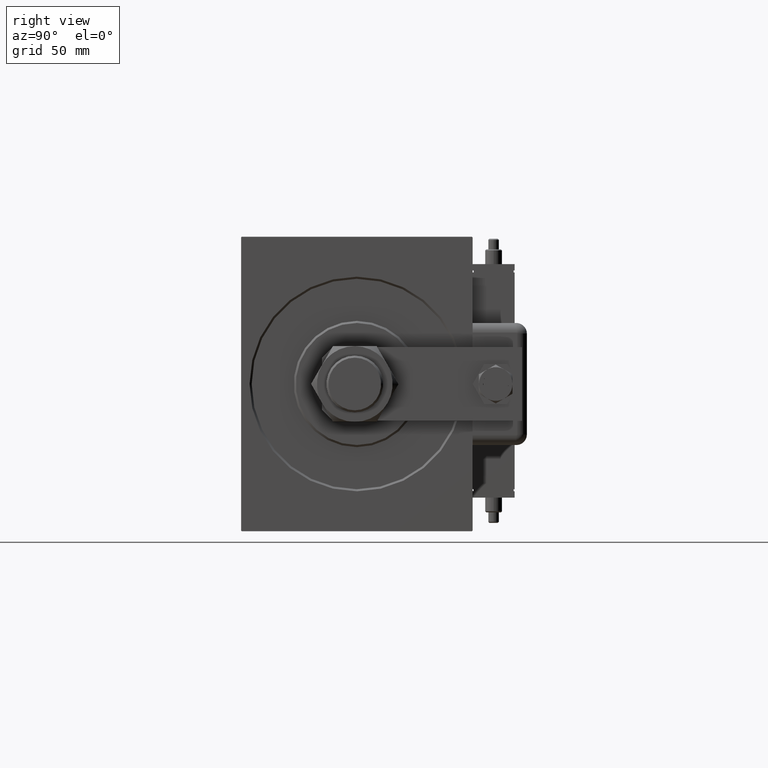
[diagram: clean part render]
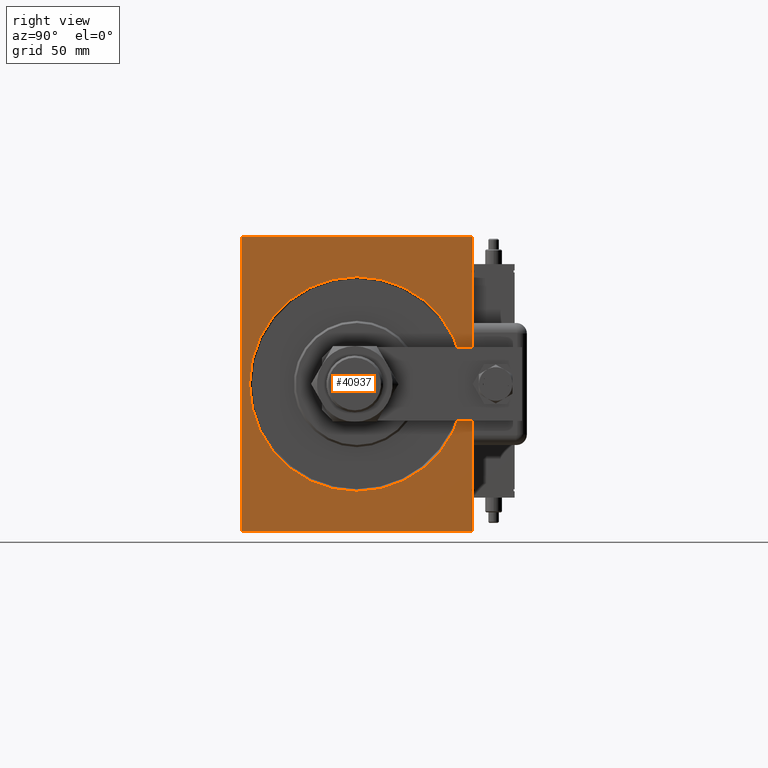
[diagram: same view with one face highlighted and labeled with its STEP entity id]
A machine part, right view. The second image highlights one B-rep face of the part: STEP entity #40937.
In plain terms, the highlighted planar face has unit normal (-1, 0, 0).
Its self-contained STEP definition (entity closure, byte-faithful):
#148 = AXIS2_PLACEMENT_3D ( 'NONE', #32329, #32010, #8448 ) ;
#207 = VERTEX_POINT ( 'NONE', #55438 ) ;
#441 = CARTESIAN_POINT ( 'NONE',  ( 0.000000000000000000, 0.000000000000000000, 50.99999999999993605 ) ) ;
#1582 = VERTEX_POINT ( 'NONE', #46875 ) ;
#1964 = CARTESIAN_POINT ( 'NONE',  ( 0.000000000000000000, 54.99999999999999289, 70.00000000000000000 ) ) ;
#2148 = EDGE_CURVE ( 'NONE', #32895, #46059, #28184, .T. ) ;
#2700 = CARTESIAN_POINT ( 'NONE',  ( 0.000000000000000000, -54.99999999999999289, 69.70000000000000284 ) ) ;
#3105 = AXIS2_PLACEMENT_3D ( 'NONE', #38208, #14310, #33486 ) ;
#4983 = DIRECTION ( 'NONE',  ( 0.000000000000000000, -1.982541115402065110E-16, 1.000000000000000000 ) ) ;
#5762 = VECTOR ( 'NONE', #59098, 1000.000000000000114 ) ;
#7254 = EDGE_CURVE ( 'NONE', #40719, #207, #24444, .T. ) ;
#7921 = ORIENTED_EDGE ( 'NONE', *, *, #61607, .T. ) ;
#8325 = VECTOR ( 'NONE', #4983, 1000.000000000000000 ) ;
#8448 = DIRECTION ( 'NONE',  ( 0.000000000000000000, 0.000000000000000000, -1.000000000000000000 ) ) ;
#8680 = CARTESIAN_POINT ( 'NONE',  ( 0.000000000000000000, 0.000000000000000000, 0.000000000000000000 ) ) ;
#9110 = EDGE_CURVE ( 'NONE', #40719, #11794, #61264, .T. ) ;
#9175 = LINE ( 'NONE', #44585, #37409 ) ;
#9223 = LINE ( 'NONE', #57615, #34832 ) ;
#9381 = VECTOR ( 'NONE', #31596, 1000.000000000000114 ) ;
#9863 = ORIENTED_EDGE ( 'NONE', *, *, #42096, .F. ) ;
#10521 = ORIENTED_EDGE ( 'NONE', *, *, #9110, .T. ) ;
#10682 = LINE ( 'NONE', #38985, #5762 ) ;
#11794 = VERTEX_POINT ( 'NONE', #12980 ) ;
#12649 = EDGE_CURVE ( 'NONE', #33141, #44129, #20931, .T. ) ;
#12980 = CARTESIAN_POINT ( 'NONE',  ( 0.000000000000000000, 54.69999999999999574, -70.00000000000001421 ) ) ;
#13232 = CARTESIAN_POINT ( 'NONE',  ( 0.000000000000000000, 55.00000000000002132, -69.70000000000000284 ) ) ;
#14310 = DIRECTION ( 'NONE',  ( 1.000000000000000000, 0.000000000000000000, 0.000000000000000000 ) ) ;
#15267 = ORIENTED_EDGE ( 'NONE', *, *, #27740, .T. ) ;
#15338 = CARTESIAN_POINT ( 'NONE',  ( 0.000000000000000000, 55.00000000000002132, -70.00000000000001421 ) ) ;
#16435 = CARTESIAN_POINT ( 'NONE',  ( 0.000000000000000000, -54.99999999999999289, -69.70000000000000284 ) ) ;
#16712 = LINE ( 'NONE', #1964, #20236 ) ;
#18178 = CARTESIAN_POINT ( 'NONE',  ( 0.000000000000000000, 55.00000000000002132, -69.70000000000000284 ) ) ;
#20236 = VECTOR ( 'NONE', #31166, 1000.000000000000000 ) ;
#20931 = LINE ( 'NONE', #2700, #9381 ) ;
#21468 = CARTESIAN_POINT ( 'NONE',  ( 0.000000000000000000, 54.69999999999997442, 70.00000000000000000 ) ) ;
#21723 = CIRCLE ( 'NONE', #61870, 50.99999999999993605 ) ;
#22810 = DIRECTION ( 'NONE',  ( 1.000000000000000000, 0.000000000000000000, 0.000000000000000000 ) ) ;
#23660 = ORIENTED_EDGE ( 'NONE', *, *, #7254, .F. ) ;
#24259 = DIRECTION ( 'NONE',  ( 0.000000000000000000, 1.000000000000000000, 0.000000000000000000 ) ) ;
#24444 = LINE ( 'NONE', #15338, #8325 ) ;
#27172 = EDGE_CURVE ( 'NONE', #48286, #11794, #9223, .T. ) ;
#27740 = EDGE_CURVE ( 'NONE', #48286, #43861, #10682, .T. ) ;
#28184 = CIRCLE ( 'NONE', #3105, 50.99999999999993605 ) ;
#31166 = DIRECTION ( 'NONE',  ( 0.000000000000000000, -1.000000000000000000, -1.261617073437677999E-16 ) ) ;
#31596 = DIRECTION ( 'NONE',  ( -0.000000000000000000, 0.7071067811865474617, 0.7071067811865474617 ) ) ;
#31691 = PLANE ( 'NONE',  #148 ) ;
#32010 = DIRECTION ( 'NONE',  ( 1.000000000000000000, 0.000000000000000000, 0.000000000000000000 ) ) ;
#32329 = CARTESIAN_POINT ( 'NONE',  ( 0.000000000000000000, 0.000000000000000000, 0.000000000000000000 ) ) ;
#32895 = VERTEX_POINT ( 'NONE', #441 ) ;
#32949 = EDGE_CURVE ( 'NONE', #1582, #207, #40029, .T. ) ;
#33141 = VERTEX_POINT ( 'NONE', #39026 ) ;
#33486 = DIRECTION ( 'NONE',  ( 0.000000000000000000, 0.000000000000000000, -1.000000000000000000 ) ) ;
#34832 = VECTOR ( 'NONE', #24259, 1000.000000000000000 ) ;
#34968 = EDGE_LOOP ( 'NONE', ( #38250, #7921 ) ) ;
#37409 = VECTOR ( 'NONE', #39243, 1000.000000000000000 ) ;
#38208 = CARTESIAN_POINT ( 'NONE',  ( 0.000000000000000000, 0.000000000000000000, 0.000000000000000000 ) ) ;
#38250 = ORIENTED_EDGE ( 'NONE', *, *, #2148, .T. ) ;
#38370 = VECTOR ( 'NONE', #42693, 1000.000000000000114 ) ;
#38985 = CARTESIAN_POINT ( 'NONE',  ( 0.000000000000000000, -54.69999999999997442, -70.00000000000001421 ) ) ;
#39026 = CARTESIAN_POINT ( 'NONE',  ( 0.000000000000000000, -54.99999999999999289, 69.70000000000000284 ) ) ;
#39243 = DIRECTION ( 'NONE',  ( 0.000000000000000000, 0.000000000000000000, -1.000000000000000000 ) ) ;
#40029 = LINE ( 'NONE', #21468, #58042 ) ;
#40719 = VERTEX_POINT ( 'NONE', #13232 ) ;
#40937 = ADVANCED_FACE ( 'NONE', ( #41130, #60316 ), #31691, .F. ) ;
#40952 = DIRECTION ( 'NONE',  ( -0.000000000000000000, 0.7071067811865312525, -0.7071067811865638930 ) ) ;
#41130 = FACE_BOUND ( 'NONE', #34968, .T. ) ;
#41539 = CARTESIAN_POINT ( 'NONE',  ( 0.000000000000000000, 6.245698675651492556E-15, -50.99999999999993605 ) ) ;
#41999 = DIRECTION ( 'NONE',  ( 0.000000000000000000, 0.000000000000000000, -1.000000000000000000 ) ) ;
#42096 = EDGE_CURVE ( 'NONE', #1582, #44129, #16712, .T. ) ;
#42693 = DIRECTION ( 'NONE',  ( 0.000000000000000000, -0.7071067811865474617, -0.7071067811865474617 ) ) ;
#43141 = EDGE_CURVE ( 'NONE', #33141, #43861, #9175, .T. ) ;
#43861 = VERTEX_POINT ( 'NONE', #16435 ) ;
#44129 = VERTEX_POINT ( 'NONE', #49686 ) ;
#44585 = CARTESIAN_POINT ( 'NONE',  ( 0.000000000000000000, -54.99999999999999289, 69.99999999999998579 ) ) ;
#44648 = ORIENTED_EDGE ( 'NONE', *, *, #27172, .F. ) ;
#45199 = ORIENTED_EDGE ( 'NONE', *, *, #32949, .T. ) ;
#46059 = VERTEX_POINT ( 'NONE', #41539 ) ;
#46875 = CARTESIAN_POINT ( 'NONE',  ( 0.000000000000000000, 54.69999999999997442, 70.00000000000000000 ) ) ;
#48286 = VERTEX_POINT ( 'NONE', #61598 ) ;
#49686 = CARTESIAN_POINT ( 'NONE',  ( 0.000000000000000000, -54.69999999999999574, 69.99999999999998579 ) ) ;
#55438 = CARTESIAN_POINT ( 'NONE',  ( 0.000000000000000000, 54.99999999999999289, 69.69999999999997442 ) ) ;
#56727 = EDGE_LOOP ( 'NONE', ( #9863, #45199, #23660, #10521, #44648, #15267, #57739, #60938 ) ) ;
#57615 = CARTESIAN_POINT ( 'NONE',  ( 0.000000000000000000, -54.99999999999999289, -70.00000000000001421 ) ) ;
#57739 = ORIENTED_EDGE ( 'NONE', *, *, #43141, .F. ) ;
#58042 = VECTOR ( 'NONE', #40952, 1000.000000000000114 ) ;
#59098 = DIRECTION ( 'NONE',  ( -0.000000000000000000, -0.7071067811865474617, 0.7071067811865474617 ) ) ;
#60316 = FACE_OUTER_BOUND ( 'NONE', #56727, .T. ) ;
#60938 = ORIENTED_EDGE ( 'NONE', *, *, #12649, .T. ) ;
#61264 = LINE ( 'NONE', #18178, #38370 ) ;
#61598 = CARTESIAN_POINT ( 'NONE',  ( 0.000000000000000000, -54.69999999999997442, -70.00000000000001421 ) ) ;
#61607 = EDGE_CURVE ( 'NONE', #46059, #32895, #21723, .T. ) ;
#61870 = AXIS2_PLACEMENT_3D ( 'NONE', #8680, #22810, #41999 ) ;